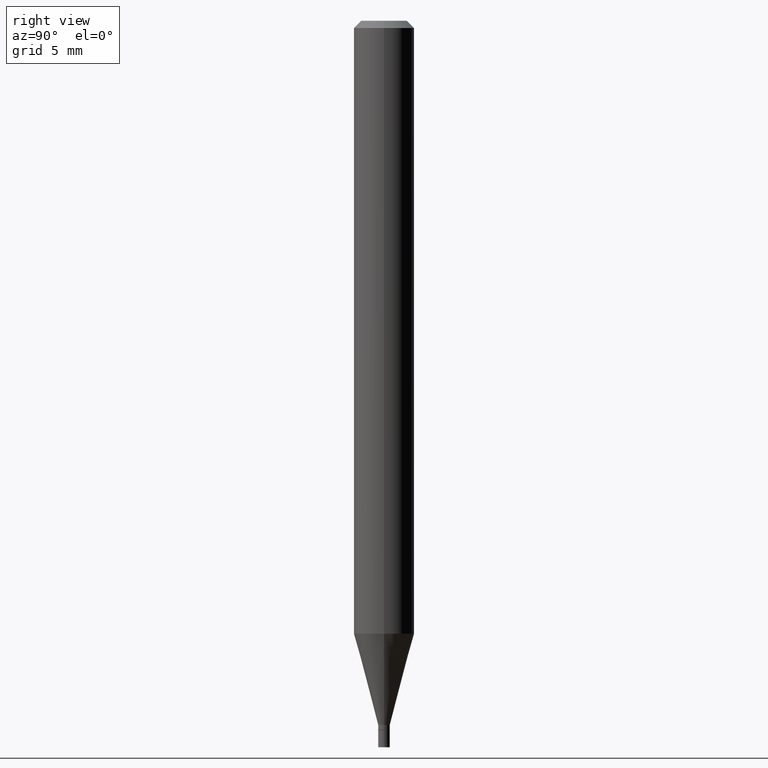
[diagram: clean part render]
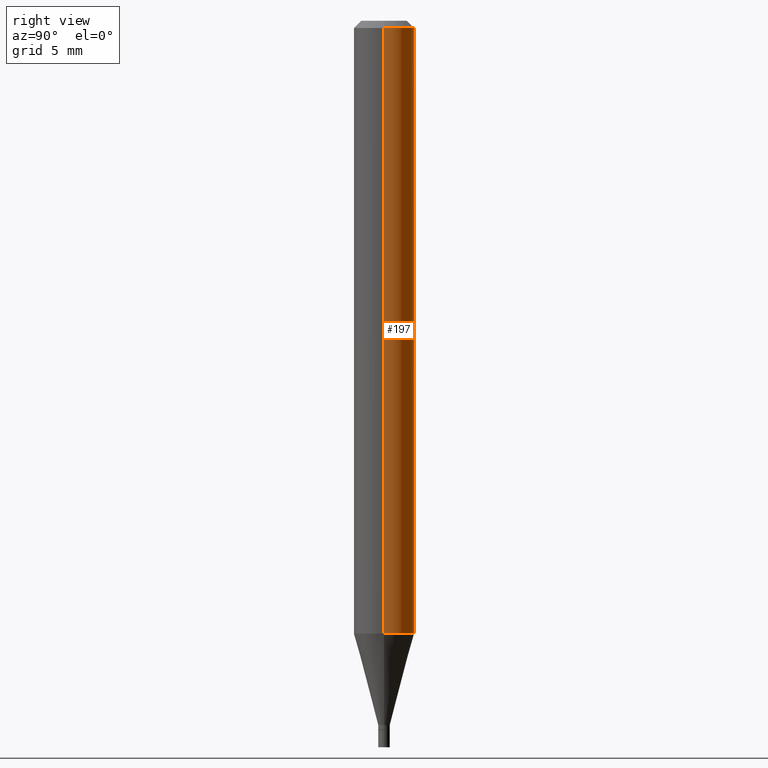
[diagram: same view with one face highlighted and labeled with its STEP entity id]
A machine part, right view. The second image highlights one B-rep face of the part: STEP entity #197.
In plain terms, the highlighted cylindrical surface (edge-blend (fillet) strip) has radius 1.5875 mm, axis along (-0, 0, 1).
Its self-contained STEP definition (entity closure, byte-faithful):
#9 = ORIENTED_EDGE ( 'NONE', *, *, #129, .T. ) ;
#15 = CARTESIAN_POINT ( 'NONE',  ( -0.06250000000000000000, -1.791386593336637406E-15, -0.01499999999999999944 ) ) ;
#17 = VERTEX_POINT ( 'NONE', #15 ) ;
#18 = AXIS2_PLACEMENT_3D ( 'NONE', #69, #173, #273 ) ;
#28 = DIRECTION ( 'NONE',  ( 1.000000000000000000, -6.982962677686266711E-15, 0.000000000000000000 ) ) ;
#69 = CARTESIAN_POINT ( 'NONE',  ( 3.094817645626298552E-29, -4.418579386290752571E-15, -1.265531434217771922 ) ) ;
#95 = CIRCLE ( 'NONE', #18, 0.06250000000000000000 ) ;
#104 = CARTESIAN_POINT ( 'NONE',  ( 0.06250000000000000000, -4.888073874380388472E-16, -0.01499999999999999944 ) ) ;
#106 = CIRCLE ( 'NONE', #258, 0.06250000000000000000 ) ;
#129 = EDGE_CURVE ( 'NONE', #148, #17, #261, .T. ) ;
#130 = EDGE_CURVE ( 'NONE', #384, #289, #358, .T. ) ;
#132 = CARTESIAN_POINT ( 'NONE',  ( 3.668203209277705088E-31, -5.237222008264718399E-17, -0.01499999999999999944 ) ) ;
#142 = CARTESIAN_POINT ( 'NONE',  ( -0.06250000000000000000, 4.440892098500626162E-16, -3.074334431409316114E-30 ) ) ;
#148 = VERTEX_POINT ( 'NONE', #177 ) ;
#153 = CYLINDRICAL_SURFACE ( 'NONE', #281, 0.06250000000000000000 ) ;
#155 = DIRECTION ( 'NONE',  ( 1.000000000000000000, -6.982962677686266711E-15, 4.876176775795935793E-29 ) ) ;
#173 = DIRECTION ( 'NONE',  ( -2.445468806185136597E-29, 3.491481338843145583E-15, 1.000000000000000000 ) ) ;
#177 = CARTESIAN_POINT ( 'NONE',  ( -0.06250000000000000000, -3.974490176440689955E-15, -1.265531434217771922 ) ) ;
#195 = ORIENTED_EDGE ( 'NONE', *, *, #130, .F. ) ;
#197 = ADVANCED_FACE ( 'NONE', ( #374 ), #153, .T. ) ;
#206 = DIRECTION ( 'NONE',  ( -2.445468806185136597E-29, 3.491481338843145583E-15, 1.000000000000000000 ) ) ;
#243 = VECTOR ( 'NONE', #396, 39.37007874015748143 ) ;
#258 = AXIS2_PLACEMENT_3D ( 'NONE', #132, #206, #28 ) ;
#261 = LINE ( 'NONE', #142, #243 ) ;
#273 = DIRECTION ( 'NONE',  ( 1.000000000000000000, -6.982962677686262766E-15, 0.000000000000000000 ) ) ;
#281 = AXIS2_PLACEMENT_3D ( 'NONE', #457, #453, #155 ) ;
#289 = VERTEX_POINT ( 'NONE', #104 ) ;
#313 = CARTESIAN_POINT ( 'NONE',  ( 0.06250000000000000000, -4.855014553646144241E-15, -1.265531434217771922 ) ) ;
#323 = EDGE_CURVE ( 'NONE', #384, #148, #95, .T. ) ;
#348 = EDGE_LOOP ( 'NONE', ( #369, #9, #375, #195 ) ) ;
#358 = LINE ( 'NONE', #361, #360 ) ;
#360 = VECTOR ( 'NONE', #437, 39.37007874015748143 ) ;
#361 = CARTESIAN_POINT ( 'NONE',  ( 0.06250000000000000000, -4.364351673553916694E-16, 3.047610484872459871E-30 ) ) ;
#369 = ORIENTED_EDGE ( 'NONE', *, *, #323, .T. ) ;
#374 = FACE_OUTER_BOUND ( 'NONE', #348, .T. ) ;
#375 = ORIENTED_EDGE ( 'NONE', *, *, #393, .F. ) ;
#384 = VERTEX_POINT ( 'NONE', #313 ) ;
#393 = EDGE_CURVE ( 'NONE', #289, #17, #106, .T. ) ;
#396 = DIRECTION ( 'NONE',  ( -2.445468806185136877E-29, 3.491481338843145188E-15, 1.000000000000000000 ) ) ;
#437 = DIRECTION ( 'NONE',  ( -2.445468806185136877E-29, 3.491481338843145188E-15, 1.000000000000000000 ) ) ;
#453 = DIRECTION ( 'NONE',  ( -2.445468806185136597E-29, 3.491481338843145583E-15, 1.000000000000000000 ) ) ;
#457 = CARTESIAN_POINT ( 'NONE',  ( 0.000000000000000000, 0.000000000000000000, 0.000000000000000000 ) ) ;